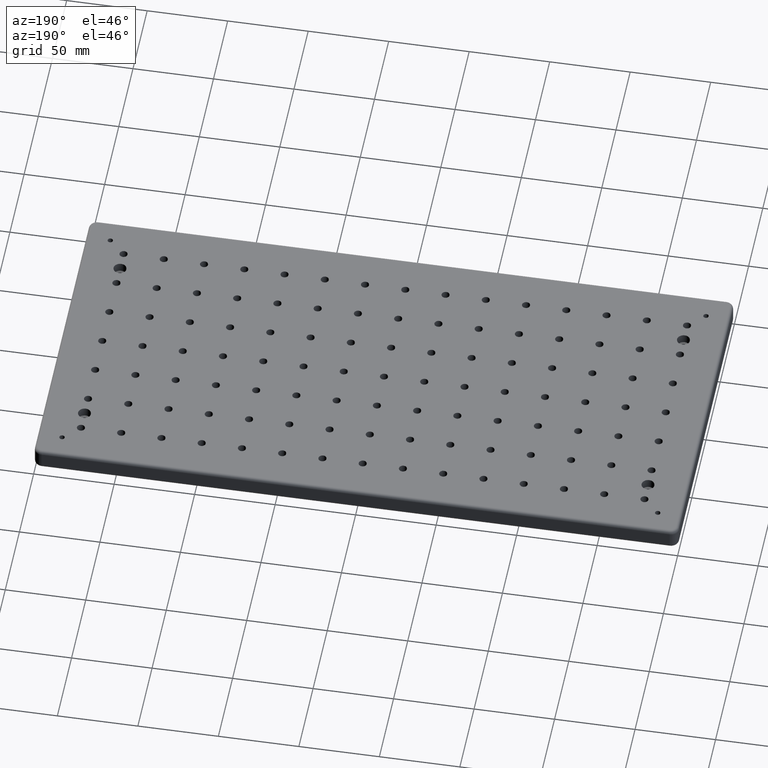
[diagram: clean part render]
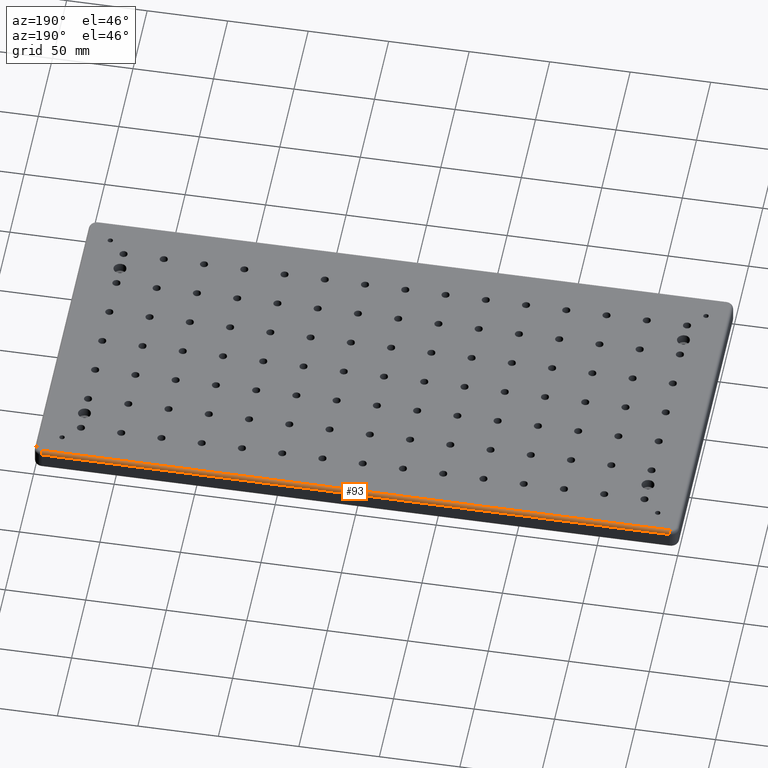
[diagram: same view with one face highlighted and labeled with its STEP entity id]
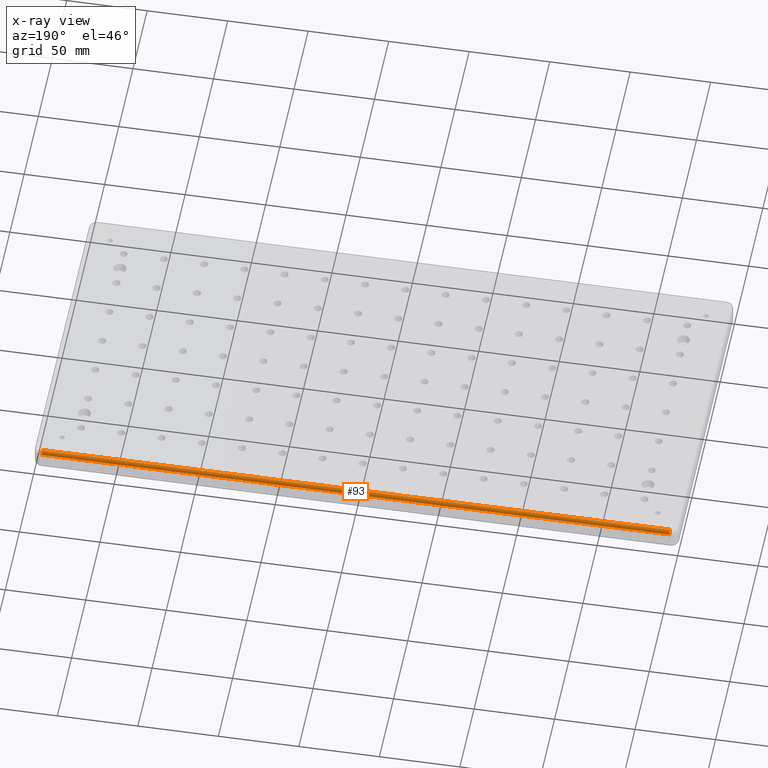
[diagram: x-ray of the same camera — body ghosted, the highlighted face saturated]
A machine part, auxiliary view. The second image highlights one B-rep face of the part: STEP entity #93.
The next image is the same camera in x-ray: the body ghosted, the highlighted face saturated — about 0% of this face is hidden behind the body in this view.
In plain terms, the highlighted cylindrical surface (edge-blend (fillet) strip) has radius 2 mm, axis along (1, 0, 0).
Its self-contained STEP definition (entity closure, byte-faithful):
#93 = ADVANCED_FACE ( 'NONE', ( #7002 ), #2443, .T. ) ;
#826 = EDGE_CURVE ( 'NONE', #8832, #7483, #6649, .T. ) ;
#1129 = AXIS2_PLACEMENT_3D ( 'NONE', #6417, #9367, #7126 ) ;
#1450 = DIRECTION ( 'NONE',  ( -1.000000000000000000, 0.0000000000000000000, 0.0000000000000000000 ) ) ;
#1743 = CIRCLE ( 'NONE', #7913, 2.000000000000000000 ) ;
#1855 = EDGE_CURVE ( 'NONE', #3708, #8832, #7761, .T. ) ;
#2350 = LINE ( 'NONE', #8027, #2588 ) ;
#2410 = CARTESIAN_POINT ( 'NONE',  ( 195.0000000000001100, 100.0000000000000100, -2.000000000000001800 ) ) ;
#2443 = CYLINDRICAL_SURFACE ( 'NONE', #3740, 2.000000000000001800 ) ;
#2588 = VECTOR ( 'NONE', #3659, 1000.000000000000000 ) ;
#2670 = DIRECTION ( 'NONE',  ( 1.000000000000000000, 1.067522139062650100E-016, 0.0000000000000000000 ) ) ;
#2725 = ORIENTED_EDGE ( 'NONE', *, *, #1855, .F. ) ;
#3417 = EDGE_CURVE ( 'NONE', #8493, #3708, #2350, .T. ) ;
#3659 = DIRECTION ( 'NONE',  ( -1.000000000000000000, -1.067522139062650100E-016, 0.0000000000000000000 ) ) ;
#3708 = VERTEX_POINT ( 'NONE', #8562 ) ;
#3740 = AXIS2_PLACEMENT_3D ( 'NONE', #5536, #2670, #4893 ) ;
#4182 = EDGE_LOOP ( 'NONE', ( #6964, #8130, #2725, #4975 ) ) ;
#4893 = DIRECTION ( 'NONE',  ( 0.0000000000000000000, 1.000000000000000000, 0.0000000000000000000 ) ) ;
#4975 = ORIENTED_EDGE ( 'NONE', *, *, #3417, .F. ) ;
#5158 = CARTESIAN_POINT ( 'NONE',  ( 195.0000000000001100, 98.00000000000001400, -2.000000000000000000 ) ) ;
#5536 = CARTESIAN_POINT ( 'NONE',  ( -195.0000000000001100, 98.00000000000000000, -2.000000000000000000 ) ) ;
#5780 = CARTESIAN_POINT ( 'NONE',  ( 195.0000000000001100, 100.0000000000000400, -2.000000000000000000 ) ) ;
#6022 = CARTESIAN_POINT ( 'NONE',  ( -195.0000000000001100, 100.0000000000000000, -2.000000000000003600 ) ) ;
#6417 = CARTESIAN_POINT ( 'NONE',  ( -195.0000000000001100, 98.00000000000000000, -2.000000000000000000 ) ) ;
#6570 = DIRECTION ( 'NONE',  ( 0.0000000000000000000, 0.0000000000000000000, 1.000000000000000000 ) ) ;
#6649 = LINE ( 'NONE', #5780, #8940 ) ;
#6964 = ORIENTED_EDGE ( 'NONE', *, *, #8732, .T. ) ;
#7002 = FACE_OUTER_BOUND ( 'NONE', #4182, .T. ) ;
#7126 = DIRECTION ( 'NONE',  ( 0.0000000000000000000, 0.0000000000000000000, 1.000000000000000000 ) ) ;
#7190 = DIRECTION ( 'NONE',  ( 1.000000000000000000, 1.067522139062650100E-016, -0.0000000000000000000 ) ) ;
#7483 = VERTEX_POINT ( 'NONE', #2410 ) ;
#7761 = CIRCLE ( 'NONE', #1129, 2.000000000000000000 ) ;
#7913 = AXIS2_PLACEMENT_3D ( 'NONE', #5158, #1450, #6570 ) ;
#8027 = CARTESIAN_POINT ( 'NONE',  ( -195.0000000000001100, 98.00000000000000000, 0.0000000000000000000 ) ) ;
#8130 = ORIENTED_EDGE ( 'NONE', *, *, #826, .F. ) ;
#8493 = VERTEX_POINT ( 'NONE', #8854 ) ;
#8562 = CARTESIAN_POINT ( 'NONE',  ( -195.0000000000001100, 98.00000000000000000, 0.0000000000000000000 ) ) ;
#8732 = EDGE_CURVE ( 'NONE', #8493, #7483, #1743, .T. ) ;
#8832 = VERTEX_POINT ( 'NONE', #6022 ) ;
#8854 = CARTESIAN_POINT ( 'NONE',  ( 195.0000000000001100, 98.00000000000001400, 0.0000000000000000000 ) ) ;
#8940 = VECTOR ( 'NONE', #7190, 1000.000000000000000 ) ;
#9367 = DIRECTION ( 'NONE',  ( -1.000000000000000000, 0.0000000000000000000, 0.0000000000000000000 ) ) ;